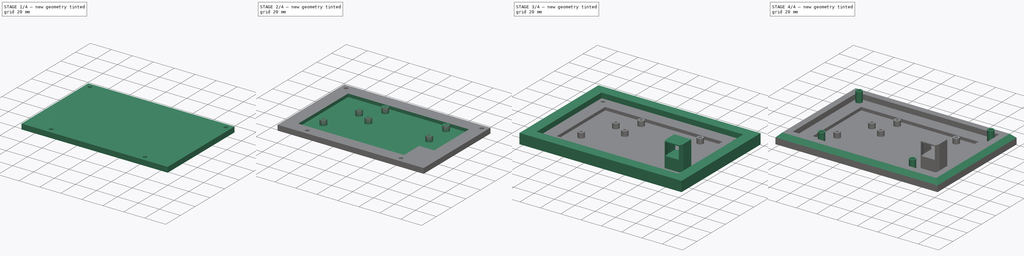
[diagram: build sequence overview — one tinted view per stage of 4, left to right]
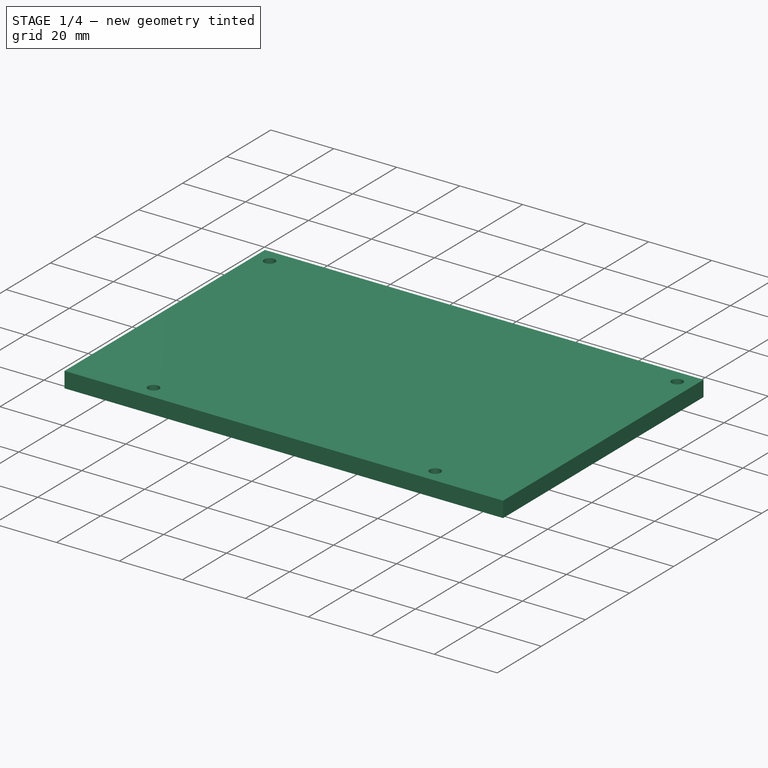
[diagram: stage 1 of 4 — iso view after this stage's code; geometry added in this stage tinted green]
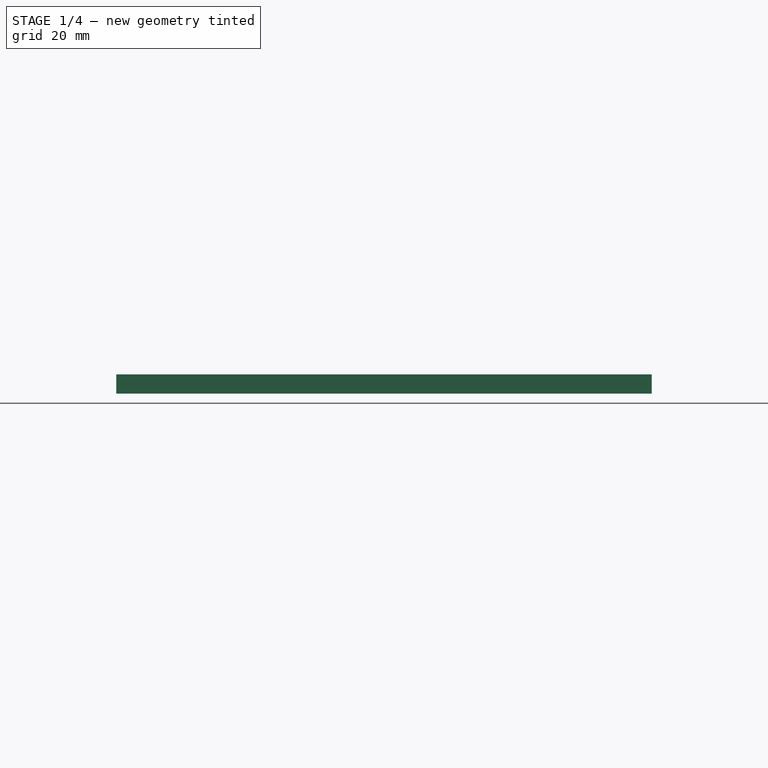
[diagram: stage 1 of 4 — front view after this stage's code; geometry added in this stage tinted green]
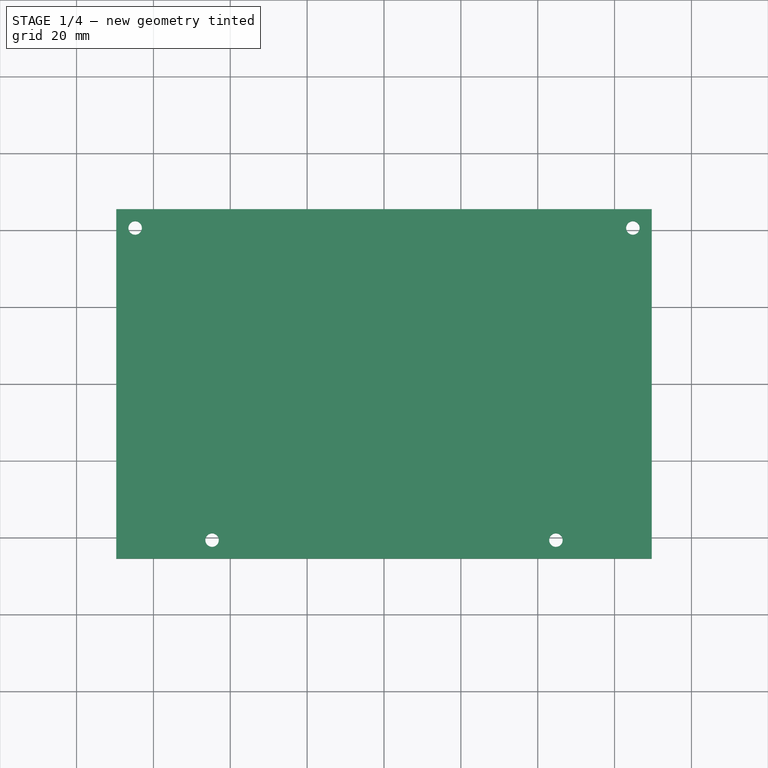
[diagram: stage 1 of 4 — top view after this stage's code; geometry added in this stage tinted green]
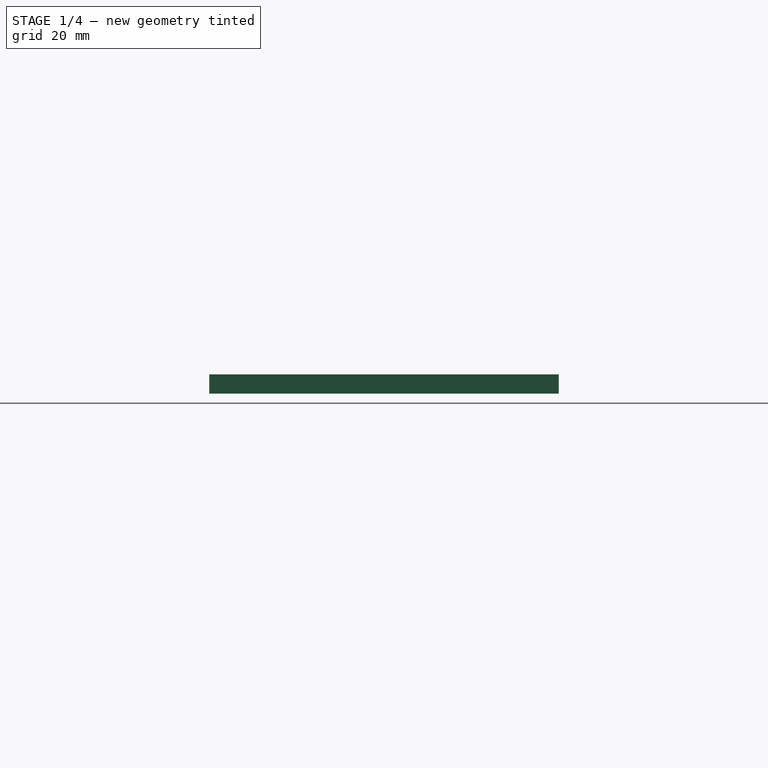
[diagram: stage 1 of 4 — right view after this stage's code; geometry added in this stage tinted green]
FCSTD DOCUMENT  (FreeCAD 1.0R39319 (Git))
Label: new_base_plate
License: All rights reserved
LicenseURL: https://en.wikipedia.org/wiki/All_rights_reserved
objects: Sketcher::SketchObject×12, PartDesign::Pocket×7, PartDesign::Pad×5, PartDesign::Chamfer×1, PartDesign::Body×1
note: 64 computed .brp shape members not serialized (recipe doc carries the construction recipe); baked Part::Feature solids carry a one-line shape summary decoded from their .brp

FEATURE [Sketcher::SketchObject] Sketch
  ArcFitTolerance = 1e-06
  AttachmentSupport = -> [XY_Plane]
  FullyConstrained = true
  MakeInternals = false
  MapMode = 5
  sketch-geometry (5):
    g0: LineSegment StartX=-69.655 StartY=-45.46 StartZ=0 EndX=69.655 EndY=-45.46 EndZ=0
    g1: LineSegment StartX=69.655 StartY=-45.46 StartZ=0 EndX=69.655 EndY=45.46 EndZ=0
    g2: LineSegment StartX=69.655 StartY=45.46 StartZ=0 EndX=-69.655 EndY=45.46 EndZ=0
    g3: LineSegment StartX=-69.655 StartY=45.46 StartZ=0 EndX=-69.655 EndY=-45.46 EndZ=0
    g4: GeomPoint [constr] X=0 Y=0 Z=0
  constraints (12):
    c: Coincident(g0,g1)
    c: Coincident(g1,g2)
    c: Coincident(g2,g3)
    c: Coincident(g3,g0)
    c: Horizontal(g0)
    c: Horizontal(g2)
    c: Vertical(g1)
    c: Vertical(g3)
    c: Symmetric(g2,g0,g4)
    c: Distance(g1,g3) = 139.31
    c: Distance(g0,g2) = 90.92
    c: Coincident(g4,g-1)
FEATURE [PartDesign::Pad] Pad
  Direction = (0,0,1)
  Length = 5
  Length2 = 10
  Profile = -> Sketch
  ReferenceAxis = -> Sketch [N_Axis]
  Refine = true
  Suppressed = false
  Type = 0
FEATURE [Sketcher::SketchObject] Sketch001
  ArcFitTolerance = 1e-06
  AttachmentSupport = -> [Pad]
  ExternalGeometry = -> [Pad]
  FullyConstrained = true
  MakeInternals = false
  MapMode = 5
  Placement = pos=(0,0,0) rot=(1,0,0;3.14159rad)
  sketch-geometry (4):
    g0: Circle CenterX=-44.735 CenterY=40.67 CenterZ=0 NormalX=0 NormalY=0 NormalZ=1 AngleXU=0 Radius=1.75
    g1: Circle CenterX=-64.755 CenterY=-40.56 CenterZ=0 NormalX=0 NormalY=0 NormalZ=1 AngleXU=0 Radius=1.75
    g2: Circle CenterX=64.755 CenterY=-40.56 CenterZ=0 NormalX=0 NormalY=0 NormalZ=1 AngleXU=0 Radius=1.75
    g3: Circle CenterX=44.735 CenterY=40.67 CenterZ=0 NormalX=0 NormalY=0 NormalZ=1 AngleXU=0 Radius=1.75
  constraints (12):
    c: Diameter(g0) = 3.5
    c: Distance(g0,g-3) = 4.79
    c: Distance(g0,g-6) = 24.92
    c: Distance(g3,g-3) = 4.79
    c: Distance(g3,g-4) = 24.92
    c: Distance(g1,g-6) = 4.9
    c: Distance(g1,g-5) = 4.9
    c: Distance(g2,g-5) = 4.9
    c: Distance(g2,g-4) = 4.9
    c: Equal(g3,g0)
    c: Equal(g2,g0)
    c: Equal(g1,g0)
FEATURE [PartDesign::Pocket] Pocket
  BaseFeature = -> Pad
  Direction = (0,0,1)
  Length = 5
  Length2 = 5
  Profile = -> Sketch001
  ReferenceAxis = -> Sketch001 [N_Axis]
  Refine = true
  Suppressed = false
  Type = 1
FEATURE [Sketcher::SketchObject] Sketch002
  ArcFitTolerance = 1e-06
  AttachmentSupport = -> [Pocket]
  ExternalGeometry = -> [Pocket]
  FullyConstrained = true
  MakeInternals = false
  MapMode = 5
  Placement = pos=(0,0,0) rot=(1,0,0;3.14159rad)
  sketch-geometry (4):
    g0: Circle CenterX=-44.735 CenterY=40.67 CenterZ=0 NormalX=0 NormalY=0 NormalZ=1 AngleXU=0 Radius=3
    g1: Circle CenterX=44.735 CenterY=40.67 CenterZ=0 NormalX=0 NormalY=0 NormalZ=1 AngleXU=0 Radius=3
    g2: Circle CenterX=64.755 CenterY=-40.56 CenterZ=0 NormalX=0 NormalY=0 NormalZ=1 AngleXU=0 Radius=3
    g3: Circle CenterX=-64.755 CenterY=-40.56 CenterZ=0 NormalX=0 NormalY=0 NormalZ=1 AngleXU=0 Radius=3
  constraints (8):
    c: Diameter(g0) = 6
    c: Coincident(g0,g-3)
    c: Coincident(g1,g-4)
    c: Coincident(g2,g-5)
    c: Coincident(g3,g-6)
    c: Equal(g3,g1)
    c: Equal(g1,g0)
    c: Equal(g2,g0)
FEATURE [PartDesign::Pocket] Pocket001
  BaseFeature = -> Pocket
  Direction = (0,0,1)
  Length = 3
  Length2 = 5
  Profile = -> Sketch002
  ReferenceAxis = -> Sketch002 [N_Axis]
  Refine = true
  Suppressed = false
  Type = 0
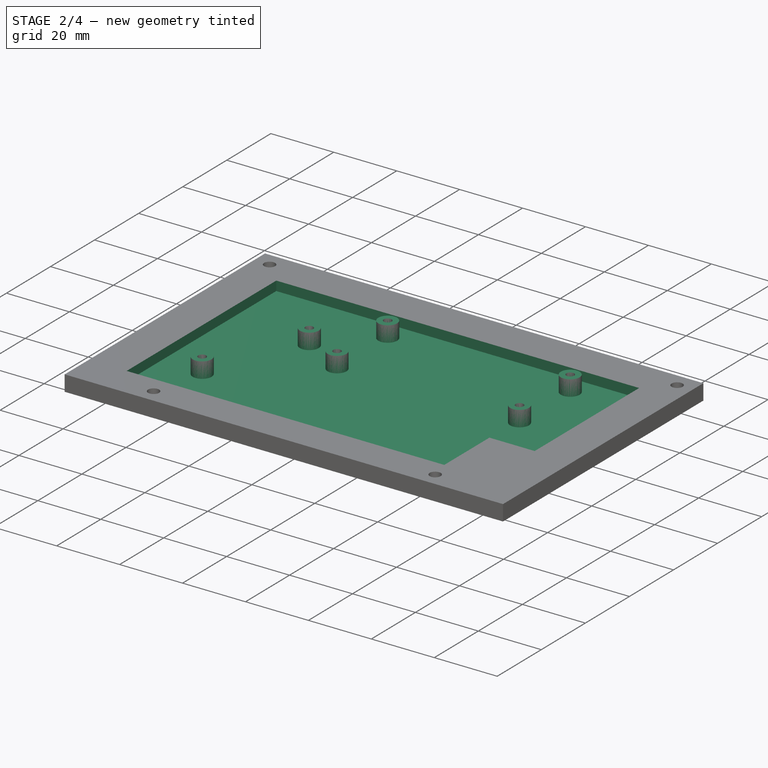
[diagram: stage 2 of 4 — iso view after this stage's code; geometry added in this stage tinted green]
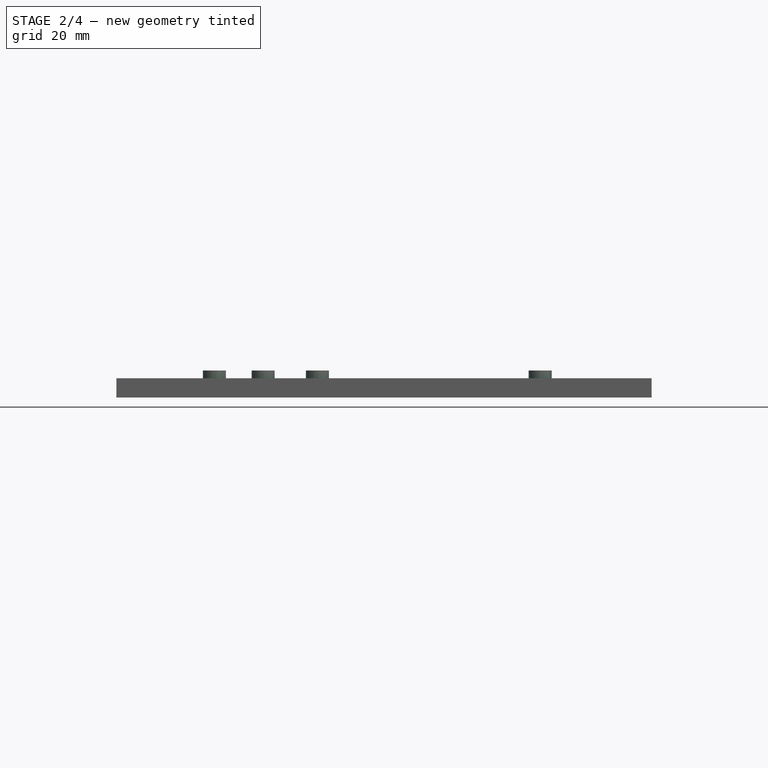
[diagram: stage 2 of 4 — front view after this stage's code; geometry added in this stage tinted green]
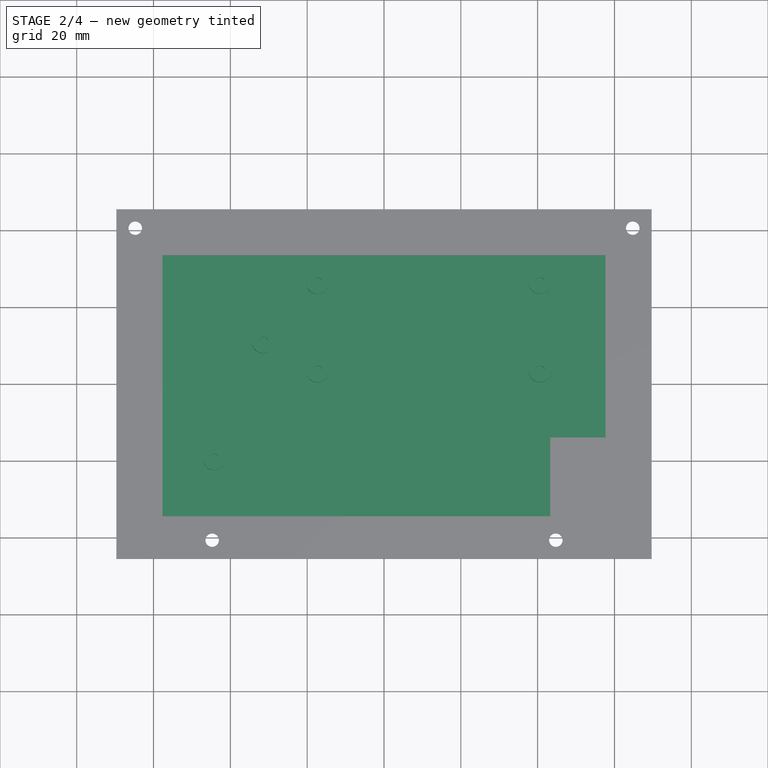
[diagram: stage 2 of 4 — top view after this stage's code; geometry added in this stage tinted green]
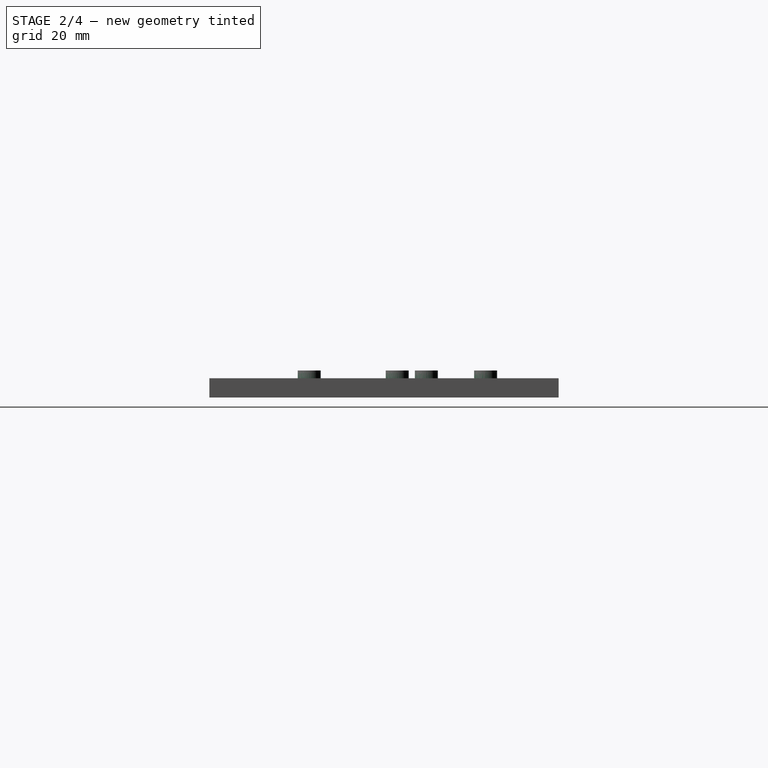
[diagram: stage 2 of 4 — right view after this stage's code; geometry added in this stage tinted green]
FEATURE [Sketcher::SketchObject] Sketch008
  ArcFitTolerance = 1e-06
  FullyConstrained = true
  MakeInternals = false
  MapMode = 5
  Placement = pos=(0,0,5) rot=(0,0,1;0rad)
  sketch-geometry (6):
    g0: LineSegment StartX=-57.6596 StartY=-34.4554 StartZ=0 EndX=-57.6596 EndY=33.4503 EndZ=0
    g1: LineSegment StartX=-57.6596 StartY=33.4503 StartZ=0 EndX=57.6596 EndY=33.4503 EndZ=0
    g2: LineSegment StartX=57.6596 StartY=33.4503 StartZ=0 EndX=57.6596 EndY=-13.9554 EndZ=0
    g3: LineSegment StartX=57.6596 StartY=-13.9554 StartZ=0 EndX=43.2796 EndY=-13.9554 EndZ=0
    g4: LineSegment StartX=43.2796 StartY=-13.9554 StartZ=0 EndX=43.2796 EndY=-34.4554 EndZ=0
    g5: LineSegment StartX=43.2796 StartY=-34.4554 StartZ=0 EndX=-57.6596 EndY=-34.4554 EndZ=0
  constraints (18):
    c: Vertical(g0)
    c: Coincident(g0,g1)
    c: Horizontal(g1)
    c: Coincident(g1,g2)
    c: Vertical(g2)
    c: Coincident(g2,g3)
    c: Horizontal(g3)
    c: Coincident(g3,g4)
    c: Vertical(g4)
    c: Coincident(g4,g5)
    c: Coincident(g5,g0)
    c: Horizontal(g5)
    c: Distance(g0,g-1) = 66.66
    c: Distance(g1,g-1) = 66.66
    c: DistanceX(g3,g2) = 14.38
    c: Distance(g4,g-1) = 55.32
    c: Distance(g0,g-1) = 67.17
    c: DistanceY(g4,g3) = 20.5
FEATURE [PartDesign::Pocket] Pocket004
  BaseFeature = -> Pocket001
  Direction = (0,0,-1)
  Length = 3
  Length2 = 5
  Profile = -> Sketch008
  ReferenceAxis = -> Sketch008 [N_Axis]
  Refine = true
  Suppressed = false
  Type = 0
FEATURE [Sketcher::SketchObject] Sketch009
  ArcFitTolerance = 1e-06
  AttachmentSupport = -> [Pocket004]
  ExternalGeometry = -> [Pocket004]
  FullyConstrained = true
  MakeInternals = false
  MapMode = 5
  Placement = pos=(0,0,2) rot=(0,0,1;0rad)
  sketch-geometry (10):
    g0: Circle CenterX=-44.1596 CenterY=-19.4554 CenterZ=0 NormalX=0 NormalY=0 NormalZ=1 AngleXU=0 Radius=3
    g1: Circle CenterX=-31.4596 CenterY=11.0246 CenterZ=0 NormalX=0 NormalY=0 NormalZ=1 AngleXU=0 Radius=3
    g2: Circle CenterX=-17.3404 CenterY=26.4503 CenterZ=0 NormalX=0 NormalY=0 NormalZ=1 AngleXU=0 Radius=3
    g3: Circle CenterX=-17.3404 CenterY=3.4503 CenterZ=0 NormalX=0 NormalY=0 NormalZ=1 AngleXU=0 Radius=3
    g4: Circle CenterX=40.6596 CenterY=26.4503 CenterZ=0 NormalX=0 NormalY=0 NormalZ=1 AngleXU=0 Radius=3
    g5: Circle CenterX=40.6596 CenterY=3.4503 CenterZ=0 NormalX=0 NormalY=0 NormalZ=1 AngleXU=0 Radius=3
    g6: LineSegment [constr] StartX=-17.3404 StartY=26.4503 StartZ=0 EndX=-17.3404 EndY=3.4503 EndZ=0
    g7: LineSegment [constr] StartX=-17.3404 StartY=3.4503 StartZ=0 EndX=40.6596 EndY=3.4503 EndZ=0
    g8: LineSegment [constr] StartX=40.6596 StartY=3.4503 StartZ=0 EndX=40.6596 EndY=26.4503 EndZ=0
    g9: LineSegment [constr] StartX=40.6596 StartY=26.4503 StartZ=0 EndX=-17.3404 EndY=26.4503 EndZ=0
  constraints (26):
    c: Diameter(g0) = 6
    c: Equal(g1,g0)
    c: Equal(g3,g0)
    c: Equal(g2,g0)
    c: Equal(g4,g0)
    c: Equal(g5,g0)
    c: Distance(g0,g-3) = 13.5
    c: Distance(g0,g-4) = 15
    c: Coincident(g6,g7)
    c: Coincident(g7,g8)
    c: Coincident(g8,g9)
    c: Coincident(g9,g6)
    c: Vertical(g6)
    c: Vertical(g8)
    c: Horizontal(g7)
    c: Horizontal(g9)
    c: Distance(g6,g8) = 58
    c: Distance(g7,g9) = 23
    c: Coincident(g2,g6)
    c: Coincident(g3,g6)
    c: Coincident(g4,g8)
    c: Coincident(g5,g7)
    c: Distance(g-8,g9) = 7
    c: DistanceX(g4,g-8) = 17
    c: DistanceY(g0,g1) = 30.48
    c: DistanceX(g0,g1) = 12.7
FEATURE [PartDesign::Pad] Pad003
  BaseFeature = -> Pocket004
  Direction = (0,0,1)
  Length = 5
  Length2 = 10
  Profile = -> Sketch009
  ReferenceAxis = -> Sketch009 [N_Axis]
  Refine = true
  Suppressed = false
  Type = 0
FEATURE [Sketcher::SketchObject] Sketch010
  ArcFitTolerance = 1e-06
  AttachmentSupport = -> [Pad003]
  ExternalGeometry = -> [Pad003]
  FullyConstrained = true
  MakeInternals = false
  MapMode = 5
  Placement = pos=(0,0,7) rot=(0,0,1;0rad)
  sketch-geometry (6):
    g0: Circle CenterX=-44.1596 CenterY=-19.4554 CenterZ=0 NormalX=0 NormalY=0 NormalZ=1 AngleXU=0 Radius=1.25
    g1: Circle CenterX=-31.4596 CenterY=11.0246 CenterZ=0 NormalX=0 NormalY=0 NormalZ=1 AngleXU=0 Radius=1.25
    g2: Circle CenterX=-17.3404 CenterY=3.4503 CenterZ=0 NormalX=0 NormalY=0 NormalZ=1 AngleXU=0 Radius=1.25
    g3: Circle CenterX=-17.3404 CenterY=26.4503 CenterZ=0 NormalX=0 NormalY=0 NormalZ=1 AngleXU=0 Radius=1.25
    g4: Circle CenterX=40.6596 CenterY=26.4503 CenterZ=0 NormalX=0 NormalY=0 NormalZ=1 AngleXU=0 Radius=1.25
    g5: Circle CenterX=40.6596 CenterY=3.4503 CenterZ=0 NormalX=0 NormalY=0 NormalZ=1 AngleXU=0 Radius=1.25
  constraints (12):
    c: Coincident(g0,g-3)
    c: Coincident(g1,g-4)
    c: Coincident(g2,g-5)
    c: Coincident(g3,g-6)
    c: Coincident(g4,g-7)
    c: Coincident(g5,g-8)
    c: Diameter(g0) = 2.5
    c: Equal(g1,g0)
    c: Equal(g2,g0)
    c: Equal(g3,g0)
    c: Equal(g4,g0)
    c: Equal(g5,g0)
FEATURE [PartDesign::Pocket] Pocket005
  BaseFeature = -> Pad003
  Direction = (0,0,-1)
  Length = 5
  Length2 = 5
  Profile = -> Sketch010
  ReferenceAxis = -> Sketch010 [N_Axis]
  Refine = true
  Suppressed = false
  Type = 0
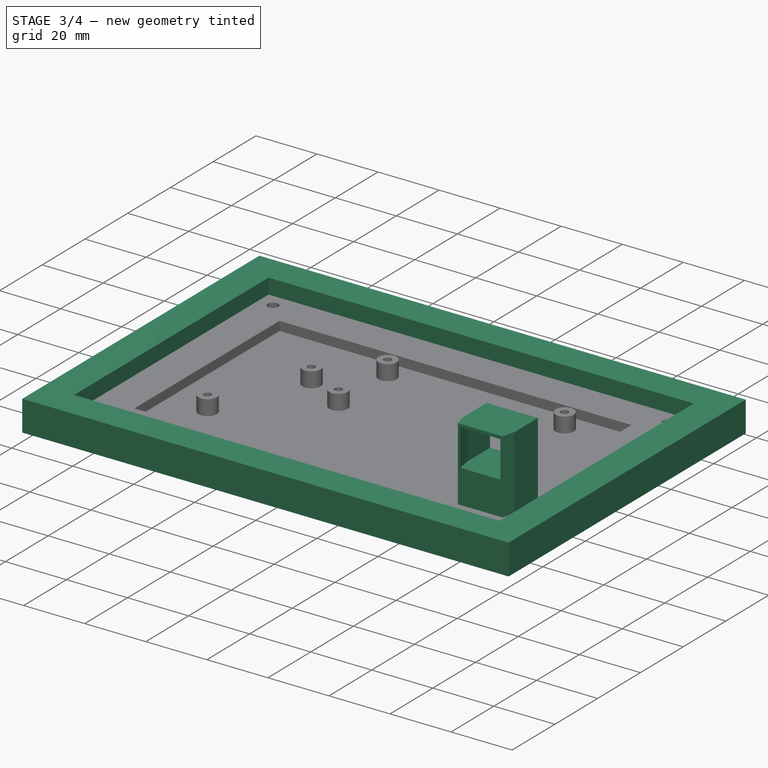
[diagram: stage 3 of 4 — iso view after this stage's code; geometry added in this stage tinted green]
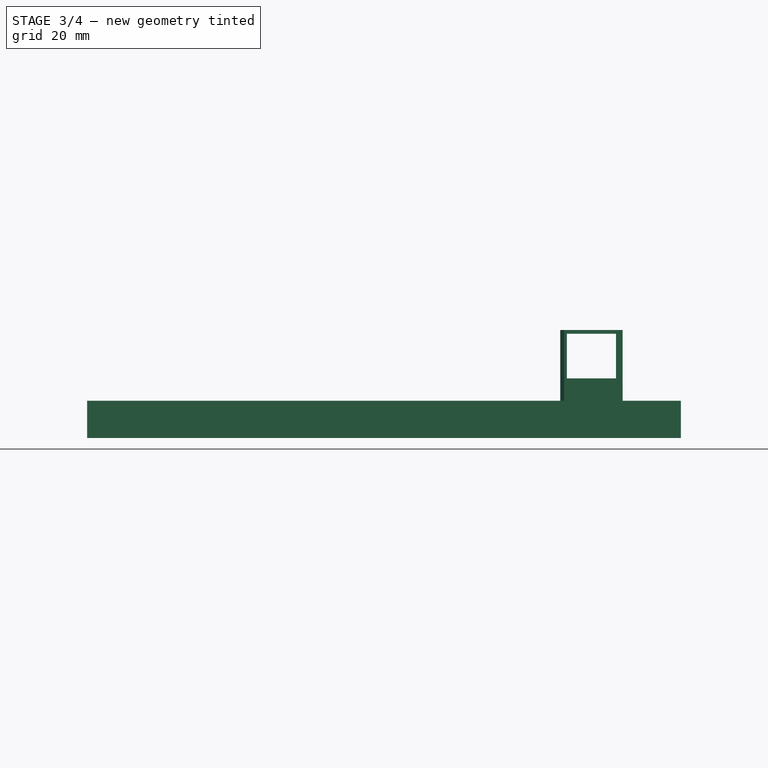
[diagram: stage 3 of 4 — front view after this stage's code; geometry added in this stage tinted green]
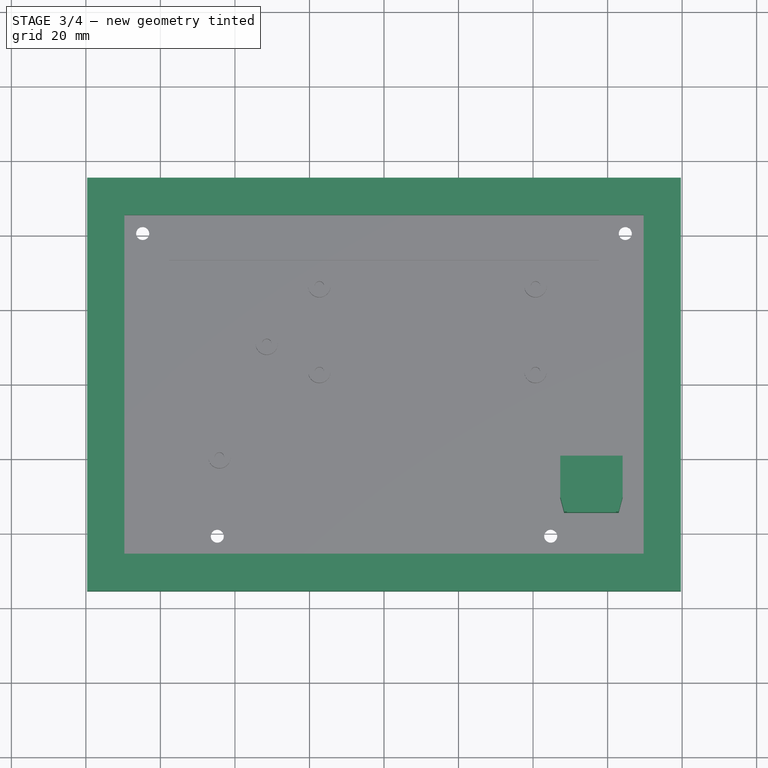
[diagram: stage 3 of 4 — top view after this stage's code; geometry added in this stage tinted green]
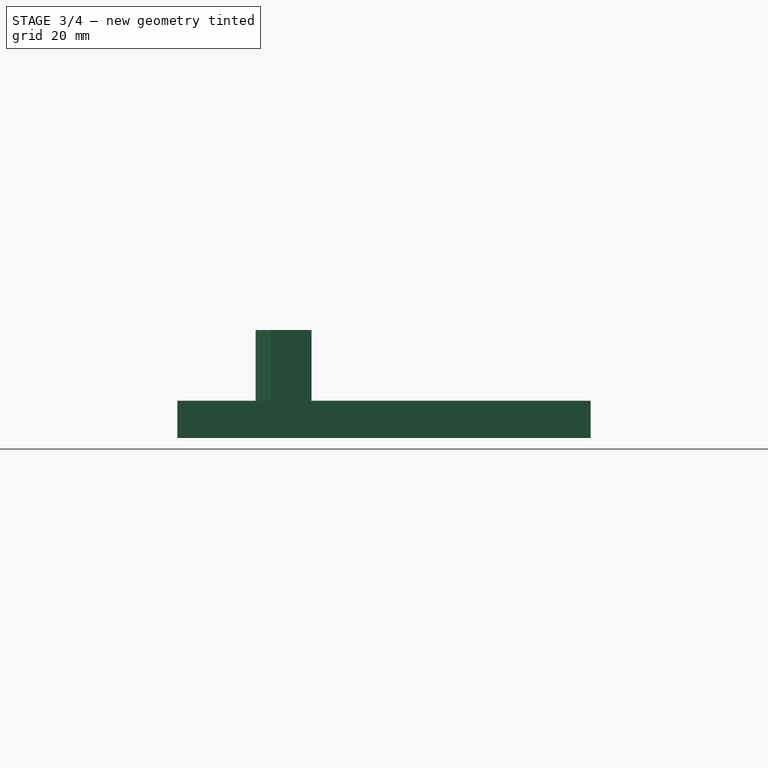
[diagram: stage 3 of 4 — right view after this stage's code; geometry added in this stage tinted green]
FEATURE [Sketcher::SketchObject] Sketch011
  ArcFitTolerance = 1e-06
  FullyConstrained = true
  MakeInternals = false
  MapMode = 5
  Placement = pos=(0,0,5) rot=(0,0,1;0rad)
  sketch-geometry (9):
    g0: LineSegment StartX=61.655 StartY=-45.46 StartZ=0 EndX=49.655 EndY=-45.46 EndZ=0
    g1: LineSegment StartX=49.655 StartY=-45.46 StartZ=0 EndX=49.655 EndY=-39.46 EndZ=0
    g2: LineSegment StartX=49.655 StartY=-39.46 StartZ=0 EndX=47.28 EndY=-30.46 EndZ=0
    g3: LineSegment StartX=47.28 StartY=-30.46 StartZ=0 EndX=47.28 EndY=-19.46 EndZ=0
    g4: LineSegment StartX=47.28 StartY=-19.46 StartZ=0 EndX=64.03 EndY=-19.46 EndZ=0
    g5: LineSegment StartX=64.03 StartY=-19.46 StartZ=0 EndX=64.03 EndY=-30.46 EndZ=0
    g6: LineSegment StartX=64.03 StartY=-30.46 StartZ=0 EndX=61.655 EndY=-39.46 EndZ=0
    g7: LineSegment StartX=61.655 StartY=-39.46 StartZ=0 EndX=61.655 EndY=-45.46 EndZ=0
    g8: LineSegment [constr] StartX=55.655 StartY=-19.46 StartZ=0 EndX=55.655 EndY=-45.46 EndZ=0
  constraints (26):
    c: Vertical(g1)
    c: Vertical(g3)
    c: Vertical(g5)
    c: Vertical(g7)
    c: DistanceY(g7,g7) = 6
    c: Distance(g5,g5) = 11
    c: DistanceX(g0,g0) = 12
    c: Coincident(g3,g4)
    c: Coincident(g4,g5)
    c: Coincident(g3,g2)
    c: Coincident(g5,g6)
    c: Coincident(g1,g2)
    c: Coincident(g1,g0)
    c: Coincident(g7,g0)
    c: Coincident(g6,g7)
    c: Distance(g5,g3) = 16.75
    c: Equal(g7,g1)
    c: Equal(g5,g3)
    c: Horizontal(g4)
    c: Horizontal(g0)
    c: PointOnObject(g0,g-3)
    c: Distance(g-4,g8) = 14
    c: Vertical(g8)
    c: Symmetric(g3,g4,g8)
    c: Symmetric(g0,g0,g8)
    c: Distance(g-3,g4) = 26
FEATURE [PartDesign::Pad] Pad004
  BaseFeature = -> Pocket005
  Direction = (0,0,1)
  Length = 24
  Length2 = 10
  Profile = -> Sketch011
  ReferenceAxis = -> Sketch011 [N_Axis]
  Refine = true
  Suppressed = false
  Type = 0
FEATURE [Sketcher::SketchObject] Sketch013
  ArcFitTolerance = 1e-06
  AttachmentOffset = pos=(0,0,-12) rot=(0,0,1;0rad)
  FullyConstrained = true
  MakeInternals = false
  MapMode = 5
  Placement = pos=(0,0,22) rot=(0,0,1;0rad)
  sketch-geometry (7):
    g0: LineSegment StartX=48.355 StartY=-19.46 StartZ=0 EndX=62.955 EndY=-19.46 EndZ=0
    g1: LineSegment StartX=62.955 StartY=-19.46 StartZ=0 EndX=62.955 EndY=-29.96 EndZ=0
    g2: LineSegment StartX=62.955 StartY=-29.96 StartZ=0 EndX=60.655 EndY=-44.46 EndZ=0
    g3: LineSegment StartX=60.655 StartY=-44.46 StartZ=0 EndX=50.655 EndY=-44.46 EndZ=0
    g4: LineSegment StartX=50.655 StartY=-44.46 StartZ=0 EndX=48.355 EndY=-29.96 EndZ=0
    g5: LineSegment StartX=48.355 StartY=-29.96 StartZ=0 EndX=48.355 EndY=-19.46 EndZ=0
    g6: LineSegment [constr] StartX=55.655 StartY=-45.46 StartZ=0 EndX=55.655 EndY=-19.46 EndZ=0
  constraints (19):
    c: PointOnObject(g0,g-3)
    c: PointOnObject(g0,g-3)
    c: Coincident(g0,g1)
    c: Vertical(g1)
    c: Coincident(g1,g2)
    c: Coincident(g2,g3)
    c: Horizontal(g3)
    c: Coincident(g3,g4)
    c: Coincident(g4,g5)
    c: Coincident(g5,g0)
    c: Vertical(g5)
    c: DistanceY(g1,g1) = 10.5
    c: Equal(g5,g1)
    c: DistanceX(g3,g3) = 10
    c: Symmetric(g-8,g-8,g6)
    c: Symmetric(g0,g0,g6)
    c: Symmetric(g3,g2,g6)
    c: Distance(g0,g3) = 25
    c: DistanceX(g0,g0) = 14.6
FEATURE [PartDesign::Pocket] Pocket007
  BaseFeature = -> Pad004
  Direction = (0,0,-1)
  Length = 12
  Length2 = 5
  Midplane = true
  Profile = -> Sketch013
  ReferenceAxis = -> Sketch013 [N_Axis]
  Refine = true
  Suppressed = false
  Type = 0
FEATURE [Sketcher::SketchObject] Sketch014
  ArcFitTolerance = 1e-06
  AttachmentSupport = -> [Pocket007]
  ExternalGeometry = -> [Pocket007]
  FullyConstrained = true
  MakeInternals = false
  MapMode = 5
  Placement = pos=(0,0,5) rot=(0,0,1;0rad)
  sketch-geometry (4):
    g0: LineSegment StartX=44.655 StartY=-34.46 StartZ=0 EndX=44.655 EndY=-45.46 EndZ=0
    g1: LineSegment StartX=44.655 StartY=-45.46 StartZ=0 EndX=69.655 EndY=-45.46 EndZ=0
    g2: LineSegment StartX=69.655 StartY=-45.46 StartZ=0 EndX=69.655 EndY=-34.46 EndZ=0
    g3: LineSegment StartX=69.655 StartY=-34.46 StartZ=0 EndX=44.655 EndY=-34.46 EndZ=0
  constraints (11):
    c: Coincident(g0,g1)
    c: Coincident(g1,g2)
    c: Coincident(g2,g3)
    c: Coincident(g3,g0)
    c: Vertical(g0)
    c: Vertical(g2)
    c: Horizontal(g3)
    c: DistanceY(g1,g2) = 11
    c: DistanceX(g0,g2) = 25
    c: Coincident(g1,g-4)
    c: Horizontal(g1)
FEATURE [PartDesign::Pocket] Pocket008
  BaseFeature = -> Pocket007
  Direction = (0,0,-1)
  Length = 5
  Length2 = 5
  Profile = -> Sketch014
  ReferenceAxis = -> Sketch014 [N_Axis]
  Refine = true
  Reversed = true
  Suppressed = false
  Type = 1
FEATURE [Sketcher::SketchObject] Sketch015
  ArcFitTolerance = 1e-06
  AttachmentSupport = -> [XY_Plane]
  ExternalGeometry = -> [Pocket008]
  FullyConstrained = true
  MakeInternals = false
  MapMode = 5
  sketch-geometry (8):
    g0: LineSegment StartX=-79.655 StartY=55.46 StartZ=0 EndX=-79.655 EndY=-55.46 EndZ=0
    g1: LineSegment StartX=-79.655 StartY=-55.46 StartZ=0 EndX=79.655 EndY=-55.46 EndZ=0
    g2: LineSegment StartX=79.655 StartY=-55.46 StartZ=0 EndX=79.655 EndY=55.46 EndZ=0
    g3: LineSegment StartX=79.655 StartY=55.46 StartZ=0 EndX=-79.655 EndY=55.46 EndZ=0
    g4: LineSegment StartX=-69.655 StartY=45.46 StartZ=0 EndX=-69.655 EndY=-45.46 EndZ=0
    g5: LineSegment StartX=-69.655 StartY=-45.46 StartZ=0 EndX=69.655 EndY=-45.46 EndZ=0
    g6: LineSegment StartX=69.655 StartY=-45.46 StartZ=0 EndX=69.655 EndY=45.46 EndZ=0
    g7: LineSegment StartX=69.655 StartY=45.46 StartZ=0 EndX=-69.655 EndY=45.46 EndZ=0
  constraints (22):
    c: Coincident(g0,g1)
    c: Coincident(g1,g2)
    c: Coincident(g2,g3)
    c: Coincident(g3,g0)
    c: Vertical(g0)
    c: Vertical(g2)
    c: Horizontal(g1)
    c: Horizontal(g3)
    c: DistanceX(g0,g-4) = 10
    c: DistanceX(g-6,g1) = 10
    c: DistanceY(g1,g-6) = 10
    c: DistanceY(g-4,g0) = 10
    c: Coincident(g4,g5)
    c: Coincident(g5,g6)
    c: Coincident(g6,g7)
    c: Coincident(g7,g4)
    c: Vertical(g4)
    c: Vertical(g6)
    c: Horizontal(g5)
    c: Horizontal(g7)
    c: Coincident(g4,g-4)
    c: Coincident(g5,g-6)
FEATURE [PartDesign::Pad] Pad005
  BaseFeature = -> Pocket008
  Direction = (0,0,1)
  Length = 10
  Length2 = 10
  Profile = -> Sketch015
  ReferenceAxis = -> Sketch015 [N_Axis]
  Refine = true
  Suppressed = false
  Type = 0
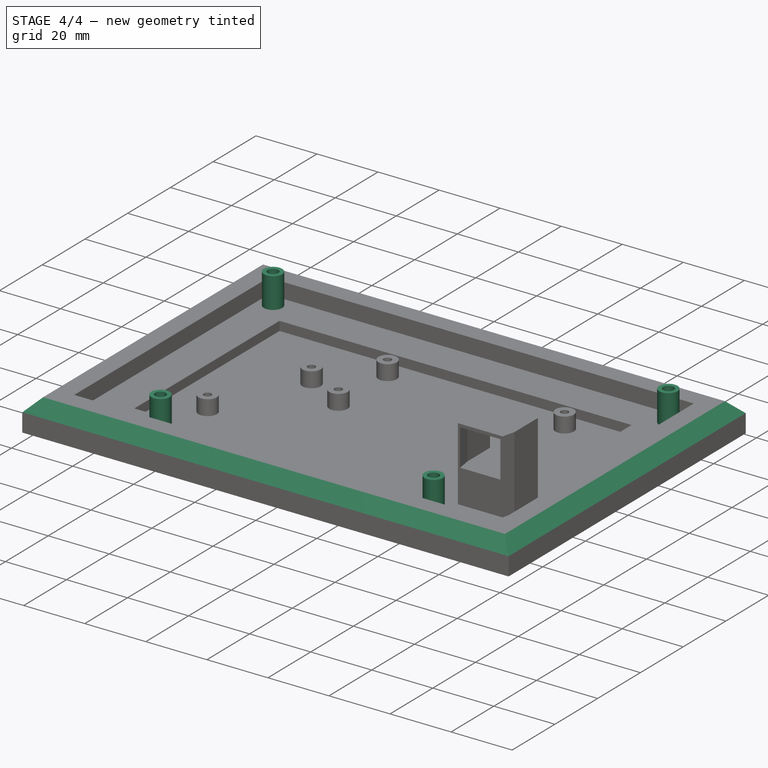
[diagram: stage 4 of 4 — iso view after this stage's code; geometry added in this stage tinted green]
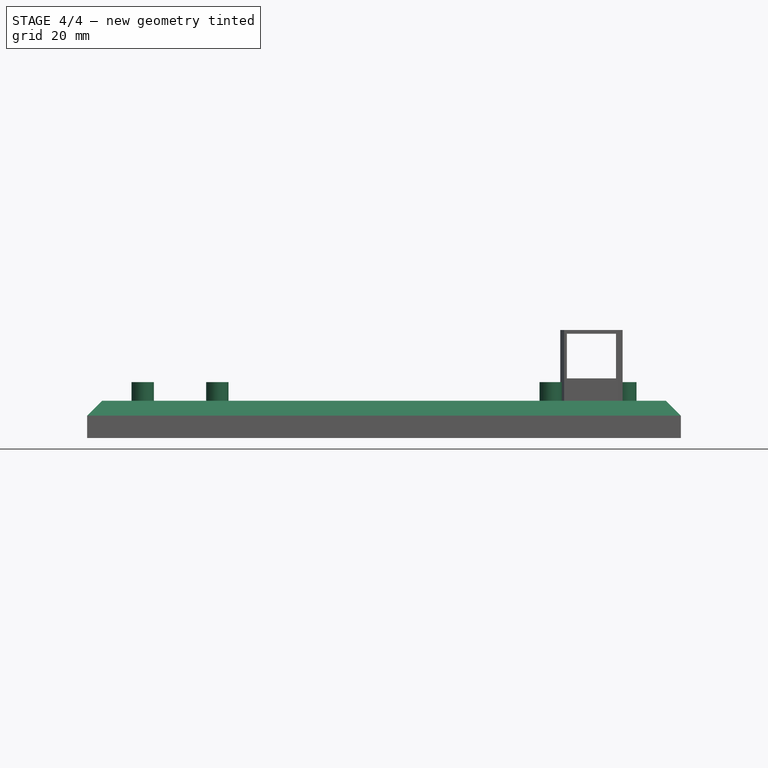
[diagram: stage 4 of 4 — front view after this stage's code; geometry added in this stage tinted green]
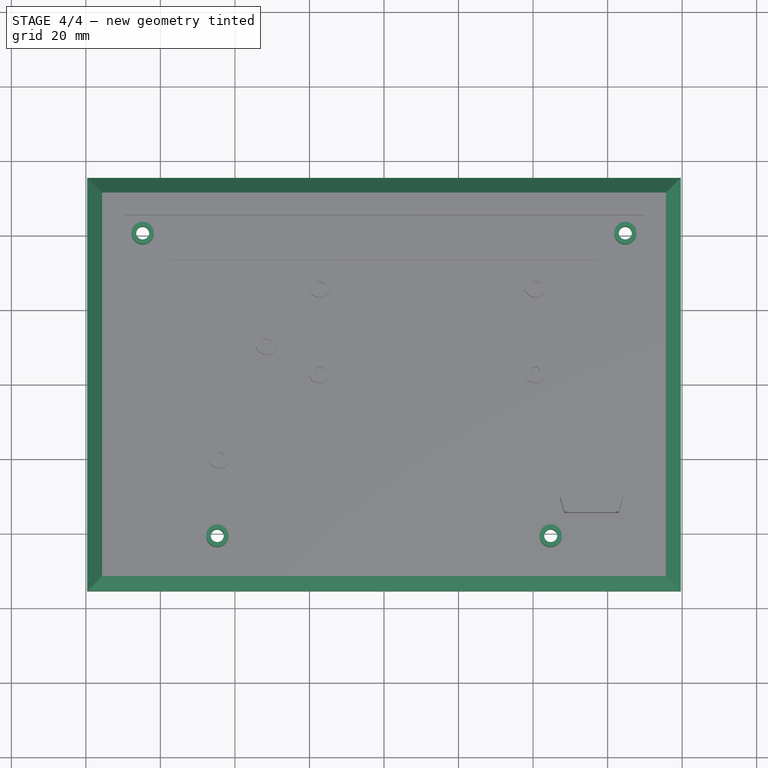
[diagram: stage 4 of 4 — top view after this stage's code; geometry added in this stage tinted green]
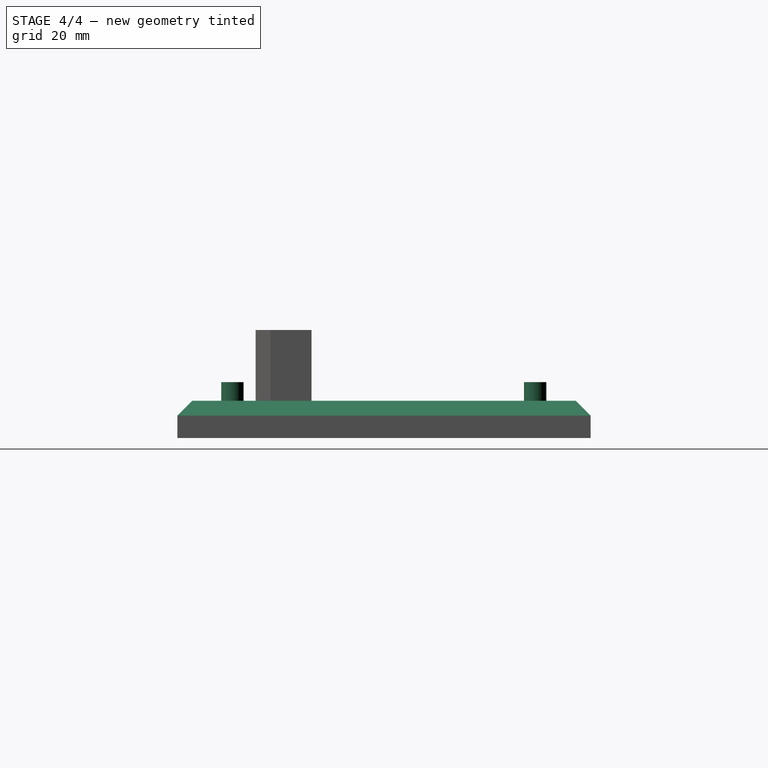
[diagram: stage 4 of 4 — right view after this stage's code; geometry added in this stage tinted green]
FEATURE [Sketcher::SketchObject] Sketch016
  ArcFitTolerance = 1e-06
  AttachmentSupport = -> [Pad005]
  ExternalGeometry = -> [Pad005]
  FullyConstrained = true
  MakeInternals = false
  MapMode = 5
  Placement = pos=(0,0,5) rot=(0,0,1;0rad)
  sketch-geometry (4):
    g0: Circle CenterX=64.755 CenterY=40.56 CenterZ=0 NormalX=0 NormalY=0 NormalZ=1 AngleXU=0 Radius=3
    g1: Circle CenterX=44.735 CenterY=-40.67 CenterZ=0 NormalX=0 NormalY=0 NormalZ=1 AngleXU=0 Radius=3
    g2: Circle CenterX=-44.735 CenterY=-40.67 CenterZ=0 NormalX=0 NormalY=0 NormalZ=1 AngleXU=0 Radius=3
    g3: Circle CenterX=-64.755 CenterY=40.56 CenterZ=0 NormalX=0 NormalY=0 NormalZ=1 AngleXU=0 Radius=3
  constraints (8):
    c: Coincident(g0,g-3)
    c: Coincident(g1,g-8)
    c: Coincident(g2,g-6)
    c: Diameter(g3) = 6
    c: Coincident(g3,g-7)
    c: Equal(g0,g3)
    c: Equal(g3,g2)
    c: Equal(g2,g1)
FEATURE [PartDesign::Pad] Pad006
  BaseFeature = -> Pad005
  Direction = (0,0,1)
  Length = 10
  Length2 = 10
  Profile = -> Sketch016
  ReferenceAxis = -> Sketch016 [N_Axis]
  Refine = true
  Suppressed = false
  Type = 0
FEATURE [Sketcher::SketchObject] Sketch017
  ArcFitTolerance = 1e-06
  AttachmentSupport = -> [Pad006]
  ExternalGeometry = -> [Pad006]
  FullyConstrained = true
  MakeInternals = false
  MapMode = 5
  Placement = pos=(0,0,15) rot=(0,0,1;0rad)
  sketch-geometry (4):
    g0: Circle CenterX=-64.755 CenterY=40.56 CenterZ=0 NormalX=0 NormalY=0 NormalZ=1 AngleXU=0 Radius=1.75
    g1: Circle CenterX=64.755 CenterY=40.56 CenterZ=0 NormalX=0 NormalY=0 NormalZ=1 AngleXU=0 Radius=1.75
    g2: Circle CenterX=44.735 CenterY=-40.67 CenterZ=0 NormalX=0 NormalY=0 NormalZ=1 AngleXU=0 Radius=1.75
    g3: Circle CenterX=-44.735 CenterY=-40.67 CenterZ=0 NormalX=0 NormalY=0 NormalZ=1 AngleXU=0 Radius=1.75
  constraints (8):
    c: Coincident(g0,g-6)
    c: Coincident(g1,g-3)
    c: Coincident(g2,g-4)
    c: Coincident(g3,g-7)
    c: Equal(g3,g2)
    c: Equal(g2,g1)
    c: Equal(g1,g0)
    c: Diameter(g0) = 3.5
FEATURE [PartDesign::Pocket] Pocket009
  BaseFeature = -> Pad006
  Direction = (0,0,-1)
  Length = 5
  Length2 = 5
  Profile = -> Sketch017
  ReferenceAxis = -> Sketch017 [N_Axis]
  Refine = true
  Suppressed = false
  Type = 1
FEATURE [PartDesign::Chamfer] Chamfer
  Angle = 45
  Base = -> Pocket009 [Edge10,Edge4,Edge7,Edge16]
  BaseFeature = -> Pocket009
  ChamferType = 0
  FlipDirection = false
  Refine = true
  Size = 4
  Size2 = 1
  SupportTransform = false
  Suppressed = false
  UseAllEdges = false
FEATURE [PartDesign::Body] Body
  AllowCompound = false
  Group = -> [Sketch,Pad,Sketch001,Pocket,Sketch002,Pocket001,Sketch008,Pocket004,Sketch009,Pad003,Sketch010,Pocket005,Sketch011,Pad004,Sketch013,Pocket007,Sketch014,Pocket008,Sketch015,Pad005,Sketch016,Pad006,Sketch017,Pocket009,Chamfer]
  Origin = -> Origin
  Tip = -> Chamfer
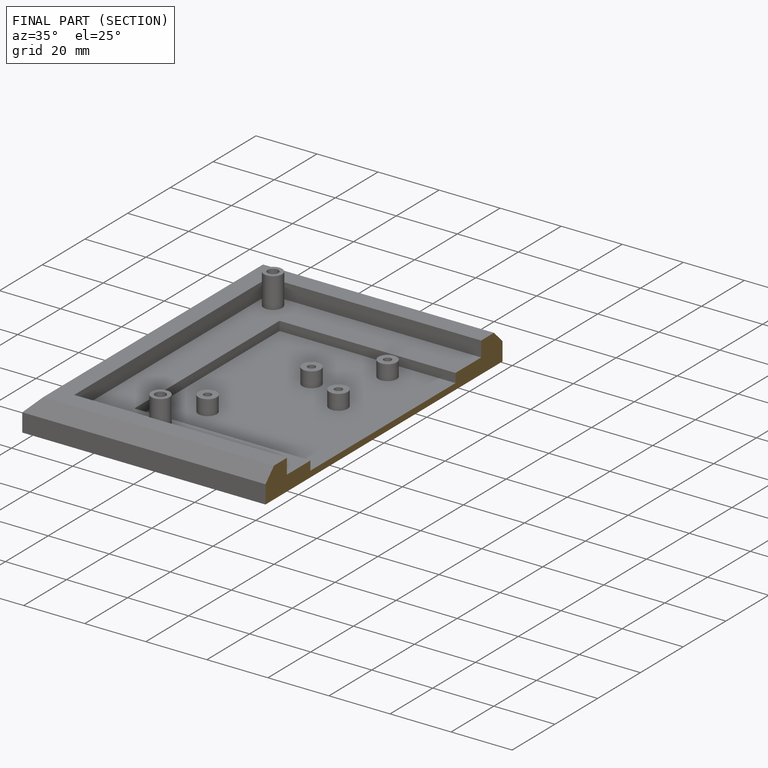
[diagram: finished part — half-section view (interior)]
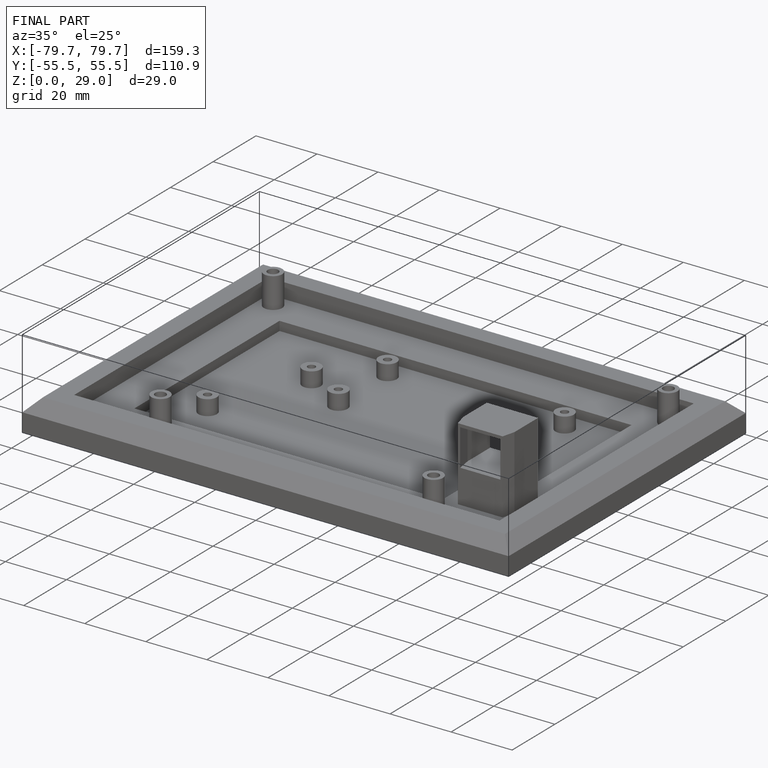
[diagram: finished part — iso view with bounding-box wireframe]
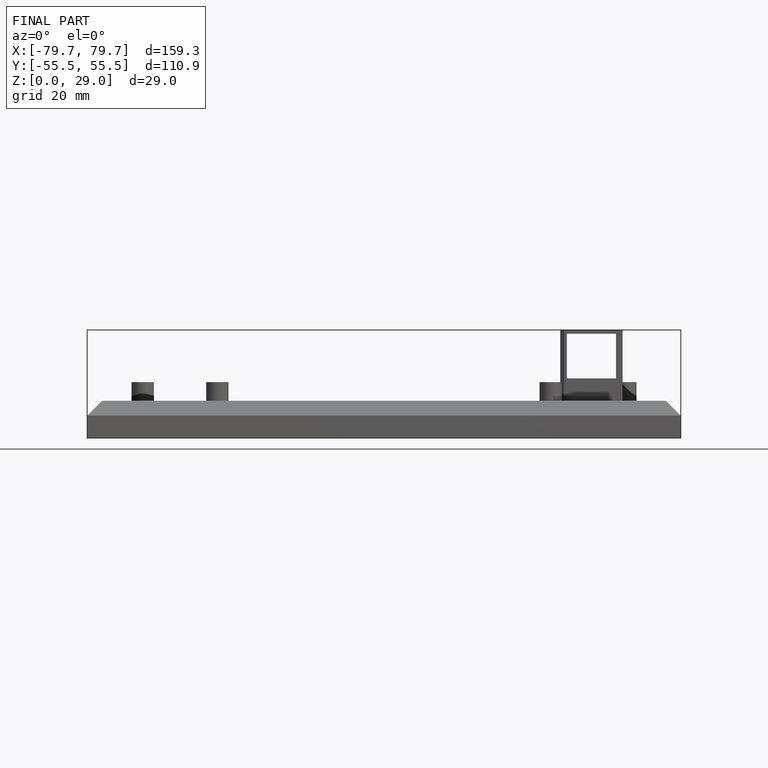
[diagram: finished part — front view with bounding-box wireframe]
